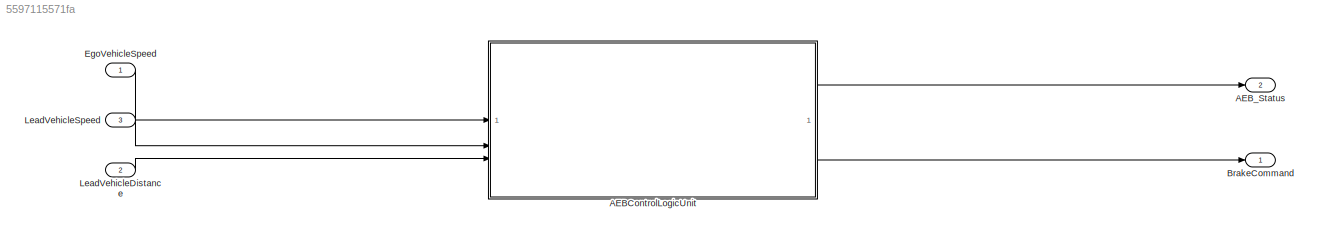
MODEL slx_5597115571fa
KIND model
CONFIG AbsTol = auto
CONFIG EnableMultiTasking = off
CONFIG FixedStep = auto
CONFIG MaxStep = auto
CONFIG MinStep = auto
CONFIG RelTol = 1e-3
CONFIG SampleTimeConstraint = Unconstrained
CONFIG SolverName = FixedStepAuto
CONFIG StartTime = 0.0
CONFIG StopTime = 10.0
BLOCK [ModelReference] AEBControlLogicUnit
  ModelNameDialog = AEBControlLogicUnit.slx
  ModelReferenceVersion = 1.4
BLOCK [Outport] AEB_Status
  Port = 2
BLOCK [Outport] BrakeCommand
BLOCK [Inport] EgoVehicleSpeed
BLOCK [Inport] LeadVehicleDistance
  Port = 2
BLOCK [Inport] LeadVehicleSpeed
  Port = 3
LINE AEBControlLogicUnit:1 -> AEB_Status:1
LINE AEBControlLogicUnit:2 -> BrakeCommand:1
LINE EgoVehicleSpeed:1 -> AEBControlLogicUnit:1
LINE LeadVehicleDistance:1 -> AEBControlLogicUnit:3
LINE LeadVehicleSpeed:1 -> AEBControlLogicUnit:2
